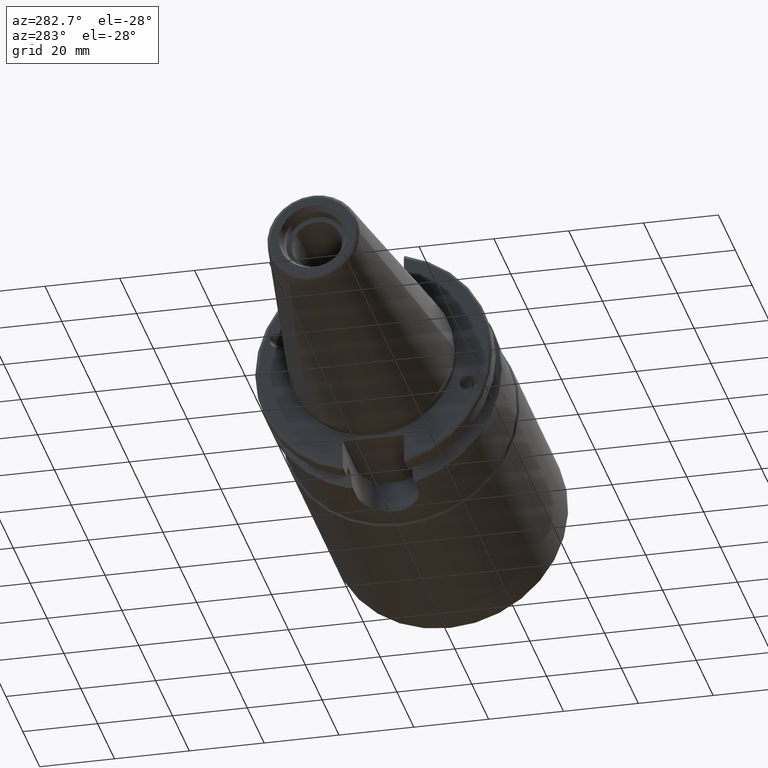
[diagram: clean part render]
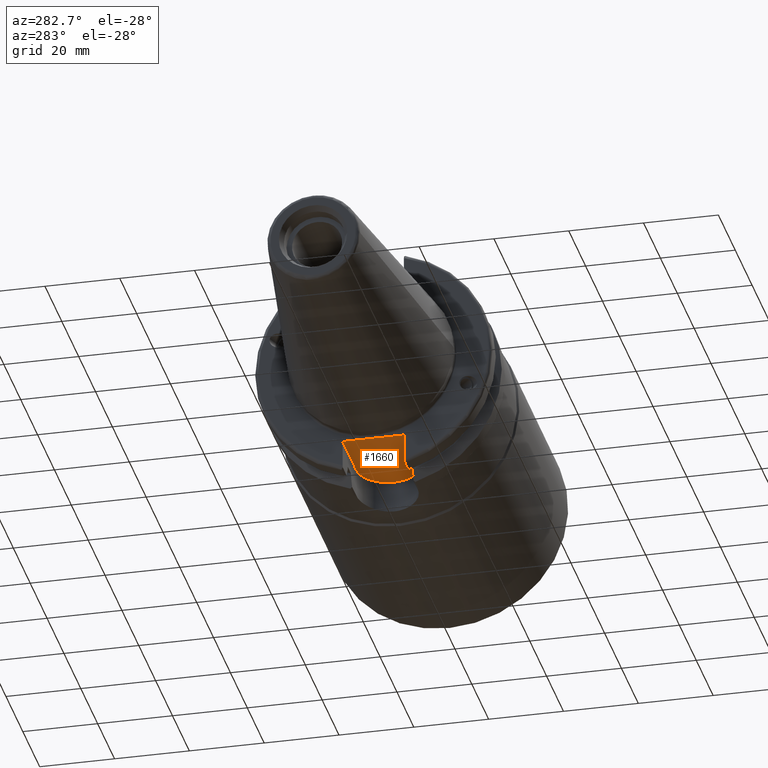
[diagram: same view with one face highlighted and labeled with its STEP entity id]
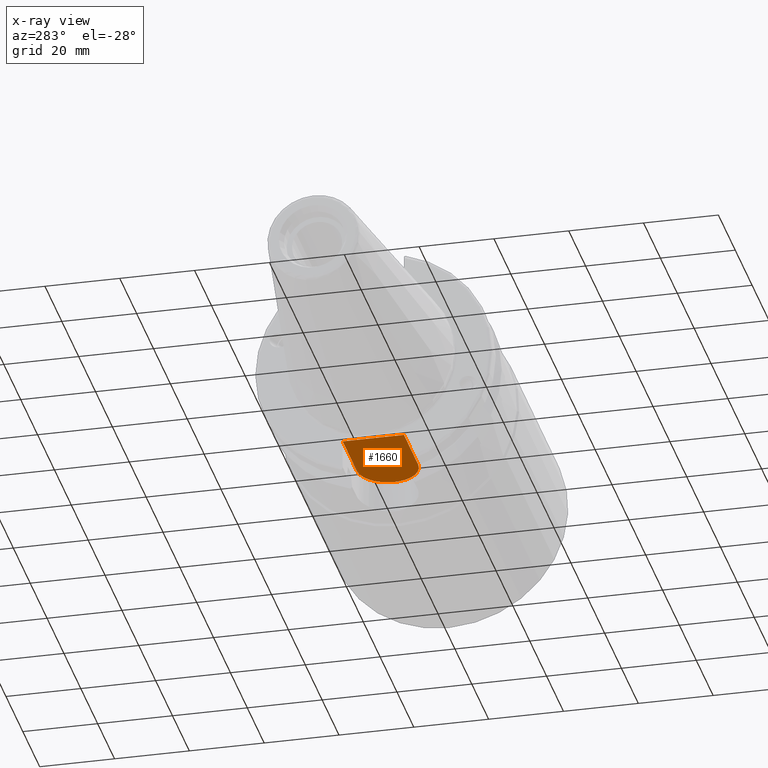
[diagram: x-ray of the same camera — body ghosted, the highlighted face saturated]
A machine part, auxiliary view. The second image highlights one B-rep face of the part: STEP entity #1660.
The next image is the same camera in x-ray: the body ghosted, the highlighted face saturated — about 0% of this face is hidden behind the body in this view.
In plain terms, the highlighted planar face has unit normal (0, 0, 1).
Its self-contained STEP definition (entity closure, byte-faithful):
#86=PLANE('',#1863);
#267=FACE_OUTER_BOUND('',#382,.T.);
#382=EDGE_LOOP('',(#1460,#1461,#1462,#1463));
#468=LINE('',#3174,#558);
#480=LINE('',#3228,#570);
#487=LINE('',#3318,#577);
#558=VECTOR('',#2214,10.);
#570=VECTOR('',#2244,10.);
#577=VECTOR('',#2293,10.);
#608=CIRCLE('',#1749,8.19);
#708=VERTEX_POINT('',#2704);
#709=VERTEX_POINT('',#2706);
#793=VERTEX_POINT('',#3173);
#807=VERTEX_POINT('',#3222);
#888=EDGE_CURVE('',#709,#708,#608,.T.);
#1007=EDGE_CURVE('',#793,#709,#468,.T.);
#1029=EDGE_CURVE('',#793,#807,#480,.T.);
#1054=EDGE_CURVE('',#708,#807,#487,.T.);
#1460=ORIENTED_EDGE('',*,*,#1029,.F.);
#1461=ORIENTED_EDGE('',*,*,#1007,.T.);
#1462=ORIENTED_EDGE('',*,*,#888,.T.);
#1463=ORIENTED_EDGE('',*,*,#1054,.T.);
#1660=ADVANCED_FACE('',(#267),#86,.F.);
#1749=AXIS2_PLACEMENT_3D('',#2707,#2001,#2002);
#1863=AXIS2_PLACEMENT_3D('',#3317,#2291,#2292);
#2001=DIRECTION('center_axis',(0.,0.,-1.));
#2002=DIRECTION('ref_axis',(2.71116733730197E-16,1.,0.));
#2214=DIRECTION('',(1.,1.98136173341789E-16,0.));
#2244=DIRECTION('',(0.,-1.,0.));
#2291=DIRECTION('center_axis',(0.,0.,1.));
#2292=DIRECTION('ref_axis',(1.,0.,0.));
#2293=DIRECTION('',(-1.,0.,0.));
#2704=CARTESIAN_POINT('',(19.985,-8.19,-22.6));
#2706=CARTESIAN_POINT('',(19.985,8.19000000000001,-22.6));
#2707=CARTESIAN_POINT('Origin',(19.985,0.,-22.6));
#3173=CARTESIAN_POINT('',(3.175,8.19000000000001,-22.6));
#3174=CARTESIAN_POINT('',(3.175,8.19000000000001,-22.6));
#3222=CARTESIAN_POINT('',(3.175,-8.19,-22.6));
#3228=CARTESIAN_POINT('',(3.175,15.875,-22.6));
#3317=CARTESIAN_POINT('Origin',(15.7075,-5.55111512312578E-16,-22.6));
#3318=CARTESIAN_POINT('',(19.985,-8.19,-22.6));